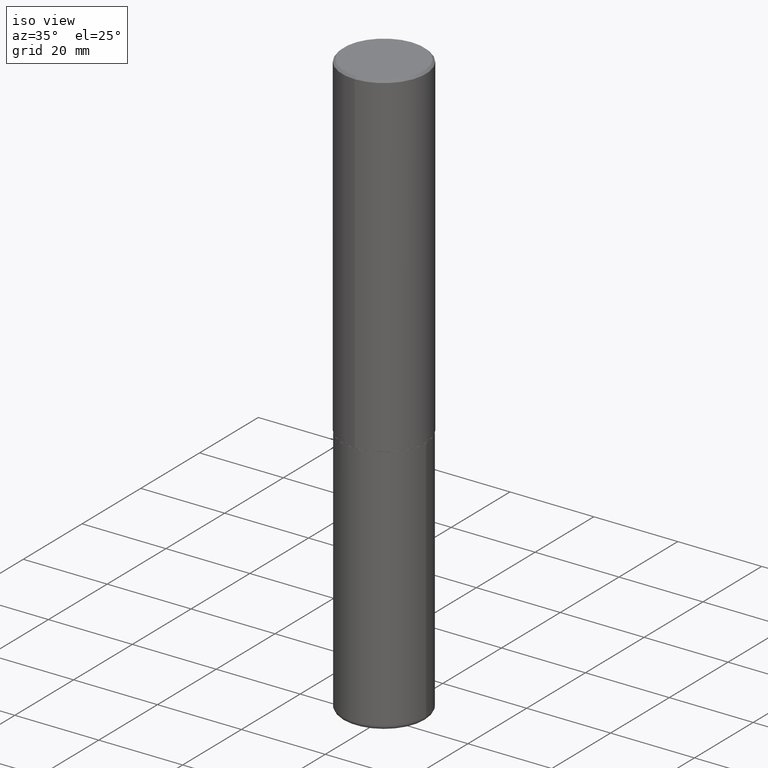
[diagram: clean part render]
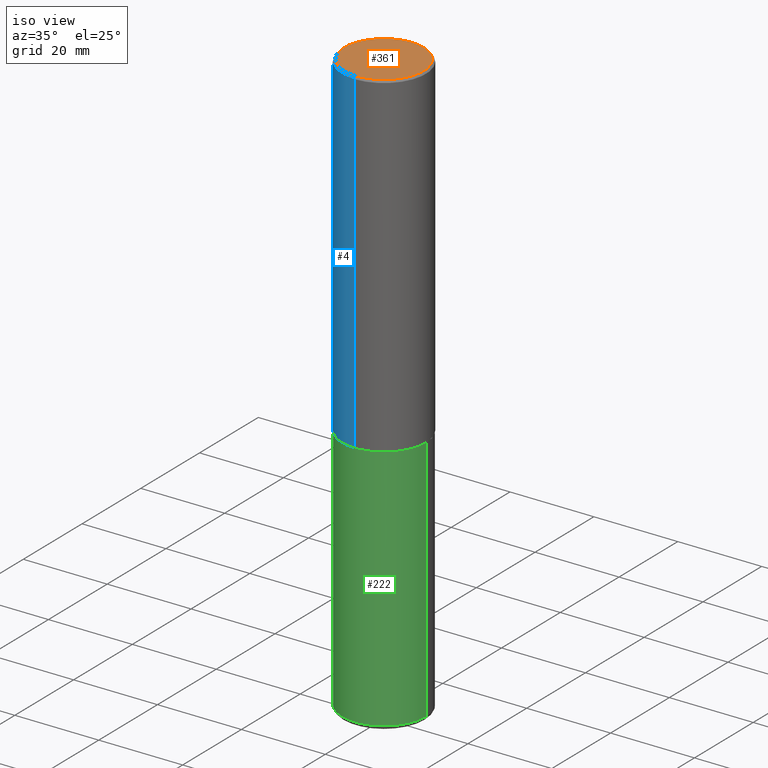
[diagram: same view with three faces highlighted in distinct colors, each labeled with its STEP entity id]
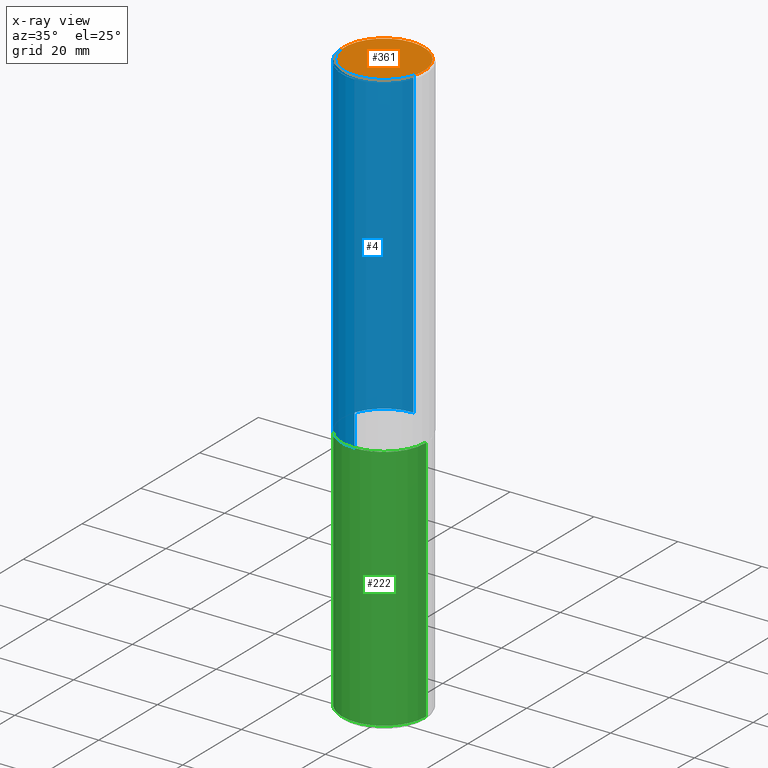
[diagram: x-ray of the same camera — body ghosted, the three highlighted faces saturated]
A machine part, iso view with three faces highlighted in distinct colors.
The next image is the same camera in x-ray (body ghosted, the three faces saturated) — at least one of them is partly hidden behind the body in this view.
Their STEP definitions:

[orange] entity #361 — the highlighted planar face has unit normal (0, -0, -1).
#24 = DIRECTION ( 'NONE',  ( 2.447621189918199031E-29, -3.488399002831325748E-15, -1.000000000000000000 ) ) ;
#62 = CARTESIAN_POINT ( 'NONE',  ( -4.046410242946616737E-45, 5.767025352895066351E-31, 1.653201181462990183E-16 ) ) ;
#76 = VERTEX_POINT ( 'NONE', #327 ) ;
#89 = DIRECTION ( 'NONE',  ( 6.982962677686265922E-15, 1.000000000000000000, -3.488399002831325748E-15 ) ) ;
#92 = EDGE_CURVE ( 'NONE', #135, #76, #151, .T. ) ;
#106 = ORIENTED_EDGE ( 'NONE', *, *, #92, .T. ) ;
#108 = DIRECTION ( 'NONE',  ( -6.982962677686265133E-15, -1.000000000000000000, 3.488399002831325748E-15 ) ) ;
#127 = CARTESIAN_POINT ( 'NONE',  ( 2.609533152651356620E-15, 0.3736999999999999211, -1.220954648284916602E-15 ) ) ;
#135 = VERTEX_POINT ( 'NONE', #148 ) ;
#148 = CARTESIAN_POINT ( 'NONE',  ( 2.679362779428220707E-15, 0.3736999999999999211, -1.138294589211767191E-15 ) ) ;
#151 = CIRCLE ( 'NONE', #349, 0.3736999999999999211 ) ;
#165 = AXIS2_PLACEMENT_3D ( 'NONE', #127, #24, #89 ) ;
#174 = EDGE_LOOP ( 'NONE', ( #106, #263 ) ) ;
#182 = AXIS2_PLACEMENT_3D ( 'NONE', #62, #254, #376 ) ;
#185 = FACE_OUTER_BOUND ( 'NONE', #174, .T. ) ;
#254 = DIRECTION ( 'NONE',  ( -2.447621189918199031E-29, 3.488399002831325748E-15, 1.000000000000000000 ) ) ;
#263 = ORIENTED_EDGE ( 'NONE', *, *, #408, .T. ) ;
#265 = DIRECTION ( 'NONE',  ( -2.447621189918199031E-29, 3.488399002831325748E-15, 1.000000000000000000 ) ) ;
#319 = PLANE ( 'NONE',  #165 ) ;
#327 = CARTESIAN_POINT ( 'NONE',  ( -2.632373081744936315E-15, -0.3736999999999999211, 1.468934825504365031E-15 ) ) ;
#349 = AXIS2_PLACEMENT_3D ( 'NONE', #391, #265, #108 ) ;
#361 = ADVANCED_FACE ( 'NONE', ( #185 ), #319, .F. ) ;
#373 = CIRCLE ( 'NONE', #182, 0.3736999999999999211 ) ;
#376 = DIRECTION ( 'NONE',  ( -6.982962677686265133E-15, -1.000000000000000000, 3.488399002831325748E-15 ) ) ;
#391 = CARTESIAN_POINT ( 'NONE',  ( -4.046410242946616737E-45, 5.767025352895066351E-31, 1.653201181462990183E-16 ) ) ;
#408 = EDGE_CURVE ( 'NONE', #76, #135, #373, .T. ) ;

[blue] entity #4 — the highlighted cylindrical surface (partial cylindrical patch) has radius 10 mm, axis along (-0, 0, 1).
#4 = ADVANCED_FACE ( 'NONE', ( #46 ), #269, .T. ) ;
#10 = DIRECTION ( 'NONE',  ( -6.982962677686265922E-15, -1.000000000000000000, 3.488399002831326143E-15 ) ) ;
#26 = VERTEX_POINT ( 'NONE', #228 ) ;
#40 = EDGE_CURVE ( 'NONE', #26, #97, #415, .T. ) ;
#43 = CARTESIAN_POINT ( 'NONE',  ( 2.749192406205084005E-15, 0.3937000000000000499, -0.02000000000000144718 ) ) ;
#46 = FACE_OUTER_BOUND ( 'NONE', #128, .T. ) ;
#52 = EDGE_CURVE ( 'NONE', #26, #88, #137, .T. ) ;
#66 = EDGE_CURVE ( 'NONE', #97, #203, #173, .T. ) ;
#72 = DIRECTION ( 'NONE',  ( -2.447621189918199031E-29, 3.488399002831325748E-15, 1.000000000000000000 ) ) ;
#74 = DIRECTION ( 'NONE',  ( -2.447621189918199031E-29, 3.488399002831325748E-15, 1.000000000000000000 ) ) ;
#77 = CARTESIAN_POINT ( 'NONE',  ( 2.797406750687515575E-15, 0.3937000000000002164, -1.373382687414693916E-15 ) ) ;
#88 = VERTEX_POINT ( 'NONE', #43 ) ;
#90 = ORIENTED_EDGE ( 'NONE', *, *, #66, .T. ) ;
#97 = VERTEX_POINT ( 'NONE', #352 ) ;
#98 = EDGE_CURVE ( 'NONE', #88, #203, #417, .T. ) ;
#103 = CARTESIAN_POINT ( 'NONE',  ( 4.895242379836416489E-31, -6.976798005662675704E-17, -0.02000000000000007327 ) ) ;
#128 = EDGE_LOOP ( 'NONE', ( #280, #133, #90, #219 ) ) ;
#133 = ORIENTED_EDGE ( 'NONE', *, *, #40, .T. ) ;
#137 = LINE ( 'NONE', #77, #341 ) ;
#164 = AXIS2_PLACEMENT_3D ( 'NONE', #103, #72, #233 ) ;
#173 = LINE ( 'NONE', #386, #394 ) ;
#203 = VERTEX_POINT ( 'NONE', #339 ) ;
#219 = ORIENTED_EDGE ( 'NONE', *, *, #98, .F. ) ;
#228 = CARTESIAN_POINT ( 'NONE',  ( 2.797406750687554229E-15, 0.3936999999999892808, -3.148600000000001398 ) ) ;
#233 = DIRECTION ( 'NONE',  ( -6.982962677686265133E-15, -1.000000000000000000, 3.491137977679279029E-15 ) ) ;
#235 = CARTESIAN_POINT ( 'NONE',  ( 0.000000000000000000, 0.000000000000000000, 0.000000000000000000 ) ) ;
#239 = AXIS2_PLACEMENT_3D ( 'NONE', #356, #301, #334 ) ;
#245 = AXIS2_PLACEMENT_3D ( 'NONE', #235, #74, #10 ) ;
#269 = CYLINDRICAL_SURFACE ( 'NONE', #245, 0.3937000000000002164 ) ;
#271 = DIRECTION ( 'NONE',  ( -2.447621189918198751E-29, 3.488399002831325748E-15, 1.000000000000000000 ) ) ;
#280 = ORIENTED_EDGE ( 'NONE', *, *, #52, .F. ) ;
#301 = DIRECTION ( 'NONE',  ( -2.447621189918199031E-29, 3.488399002831325748E-15, 1.000000000000000000 ) ) ;
#334 = DIRECTION ( 'NONE',  ( -6.982962677686265922E-15, -1.000000000000000000, 4.163344669033672479E-15 ) ) ;
#339 = CARTESIAN_POINT ( 'NONE',  ( -2.700978061722651647E-15, -0.3937000000000001609, -0.01999999999999869937 ) ) ;
#341 = VECTOR ( 'NONE', #384, 39.37007874015748143 ) ;
#352 = CARTESIAN_POINT ( 'NONE',  ( -2.749192406205007880E-15, -0.3937000000000113187, -3.148599999999998289 ) ) ;
#356 = CARTESIAN_POINT ( 'NONE',  ( 7.706580078576441267E-29, -1.098357310031471265E-14, -3.148600000000000065 ) ) ;
#384 = DIRECTION ( 'NONE',  ( -2.447621189918198751E-29, 3.488399002831325748E-15, 1.000000000000000000 ) ) ;
#386 = CARTESIAN_POINT ( 'NONE',  ( -2.749192406205084400E-15, -0.3937000000000002164, 1.373382687414693916E-15 ) ) ;
#394 = VECTOR ( 'NONE', #271, 39.37007874015748143 ) ;
#415 = CIRCLE ( 'NONE', #239, 0.3937000000000002720 ) ;
#417 = CIRCLE ( 'NONE', #164, 0.3937000000000001054 ) ;

[green] entity #222 — the highlighted cylindrical surface (partial cylindrical patch) has radius 10 mm, axis along (-0, 0, 1).
#9 = CIRCLE ( 'NONE', #110, 0.3936999999999998834 ) ;
#16 = CARTESIAN_POINT ( 'NONE',  ( 0.000000000000000000, 0.000000000000000000, 0.000000000000000000 ) ) ;
#22 = EDGE_CURVE ( 'NONE', #253, #160, #181, .T. ) ;
#48 = CARTESIAN_POINT ( 'NONE',  ( 7.702248551960704469E-29, -1.099676962482037073E-14, -3.149599999999999511 ) ) ;
#51 = CARTESIAN_POINT ( 'NONE',  ( 0.3936999999999999389, -1.374596203102545395E-14, -3.149599999999999511 ) ) ;
#58 = CARTESIAN_POINT ( 'NONE',  ( 0.3936999999999998279, -2.185597488489031278E-14, -5.472400000000000375 ) ) ;
#65 = EDGE_LOOP ( 'NONE', ( #168, #226, #190, #410 ) ) ;
#79 = DIRECTION ( 'NONE',  ( -2.445468806185136597E-29, 3.491481338843145583E-15, 1.000000000000000000 ) ) ;
#85 = CARTESIAN_POINT ( 'NONE',  ( -0.3936999999999999389, 2.797406750687513998E-15, -1.936584745033356455E-29 ) ) ;
#110 = AXIS2_PLACEMENT_3D ( 'NONE', #294, #79, #204 ) ;
#116 = CARTESIAN_POINT ( 'NONE',  ( 0.3936999999999999389, -2.749192406205082822E-15, 1.919750796630859611E-29 ) ) ;
#117 = LINE ( 'NONE', #85, #387 ) ;
#149 = CYLINDRICAL_SURFACE ( 'NONE', #333, 0.3936999999999999389 ) ;
#160 = VERTEX_POINT ( 'NONE', #51 ) ;
#168 = ORIENTED_EDGE ( 'NONE', *, *, #229, .F. ) ;
#170 = DIRECTION ( 'NONE',  ( -2.445468806185136597E-29, 3.491481338843145583E-15, 1.000000000000000000 ) ) ;
#178 = DIRECTION ( 'NONE',  ( -2.445468806185136597E-29, 3.491481338843145583E-15, 1.000000000000000000 ) ) ;
#179 = DIRECTION ( 'NONE',  ( 1.000000000000000000, -6.982962677686266711E-15, 4.876176775795935793E-29 ) ) ;
#180 = FACE_OUTER_BOUND ( 'NONE', #65, .T. ) ;
#181 = CIRCLE ( 'NONE', #379, 0.3936999999999999389 ) ;
#190 = ORIENTED_EDGE ( 'NONE', *, *, #283, .T. ) ;
#204 = DIRECTION ( 'NONE',  ( 1.000000000000000000, -6.982962677686270655E-15, 0.000000000000000000 ) ) ;
#211 = LINE ( 'NONE', #116, #259 ) ;
#218 = CARTESIAN_POINT ( 'NONE',  ( -0.3936999999999998279, -1.630937572799772188E-14, -5.472400000000000375 ) ) ;
#222 = ADVANCED_FACE ( 'NONE', ( #180 ), #149, .T. ) ;
#226 = ORIENTED_EDGE ( 'NONE', *, *, #300, .T. ) ;
#229 = EDGE_CURVE ( 'NONE', #374, #253, #117, .T. ) ;
#253 = VERTEX_POINT ( 'NONE', #403 ) ;
#259 = VECTOR ( 'NONE', #340, 39.37007874015748143 ) ;
#278 = DIRECTION ( 'NONE',  ( -2.445468806185136877E-29, 3.491481338843145188E-15, 1.000000000000000000 ) ) ;
#283 = EDGE_CURVE ( 'NONE', #287, #160, #211, .T. ) ;
#287 = VERTEX_POINT ( 'NONE', #58 ) ;
#294 = CARTESIAN_POINT ( 'NONE',  ( 1.338258349496754075E-28, -1.910678247868523272E-14, -5.472400000000000375 ) ) ;
#300 = EDGE_CURVE ( 'NONE', #374, #287, #9, .T. ) ;
#333 = AXIS2_PLACEMENT_3D ( 'NONE', #16, #178, #179 ) ;
#340 = DIRECTION ( 'NONE',  ( -2.445468806185136877E-29, 3.491481338843145188E-15, 1.000000000000000000 ) ) ;
#358 = DIRECTION ( 'NONE',  ( 1.000000000000000000, -6.982962677686269866E-15, 0.000000000000000000 ) ) ;
#374 = VERTEX_POINT ( 'NONE', #218 ) ;
#379 = AXIS2_PLACEMENT_3D ( 'NONE', #48, #170, #358 ) ;
#387 = VECTOR ( 'NONE', #278, 39.37007874015748143 ) ;
#403 = CARTESIAN_POINT ( 'NONE',  ( -0.3936999999999999389, -1.225436930106528773E-14, -3.149599999999999511 ) ) ;
#410 = ORIENTED_EDGE ( 'NONE', *, *, #22, .F. ) ;